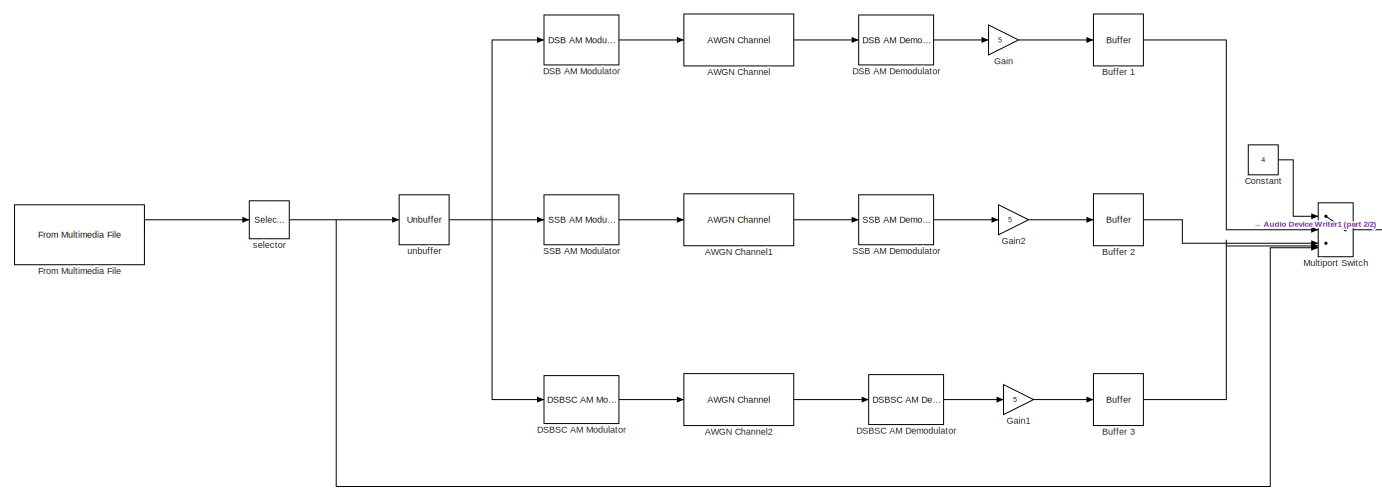
[diagram: root canvas - part 1/2, most of the canvas]
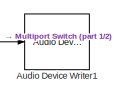
[diagram: root canvas - part 2/2, middle right region]
MODEL slx_f9d24304117a
KIND model
CONFIG AbsTol = auto
CONFIG EnableMultiTasking = off
CONFIG FixedStep = auto
CONFIG MaxStep = auto
CONFIG MinStep = auto
CONFIG RelTol = 1e-3
CONFIG SampleTimeConstraint = Unconstrained
CONFIG SolverName = VariableStepAuto
CONFIG StartTime = 0.0
CONFIG StopTime = 8
BLOCK [Reference] AWGN Channel  REF=commchan3/AWGN
Channel
  SourceBlock = commchan3/AWGN\nChannel
  SourceType = AWGN Channel
BLOCK [Reference] AWGN Channel1  REF=commchan3/AWGN
Channel
  SourceBlock = commchan3/AWGN\nChannel
  SourceType = AWGN Channel
BLOCK [Reference] AWGN Channel2  REF=commchan3/AWGN
Channel
  SourceBlock = commchan3/AWGN\nChannel
  SourceType = AWGN Channel
BLOCK [Reference] Audio Device Writer1  REF=dspsnks4/Audio Device
Writer
  SourceBlock = dspsnks4/Audio Device\nWriter
  SourceType = Audio Device Writer
BLOCK [Buffer] Buffer 1
  N = 1024
  OutputFrames = off
BLOCK [Buffer] Buffer 2
  N = 1024
  OutputFrames = off
BLOCK [Buffer] Buffer 3
  N = 1024
  OutputFrames = off
BLOCK [Constant] Constant
  Value = 4
BLOCK [Reference] DSB AM Demodulator   REF=commanapbnd3/DSB AM
Demodulator
Passband
  SourceBlock = commanapbnd3/DSB AM\nDemodulator\nPassband
  SourceType = DSB AM Demodulator Passband
BLOCK [Reference] DSB AM Modulator   REF=commanapbnd3/DSB AM
Modulator
Passband
  SourceBlock = commanapbnd3/DSB AM\nModulator\nPassband
  SourceType = DSB AM Modulator Passband
BLOCK [Reference] DSBSC AM Demodulator  REF=commanapbnd3/DSBSC AM
Demodulator
Passband
  SourceBlock = commanapbnd3/DSBSC AM\nDemodulator\nPassband
  SourceType = DSBSC AM Demodulator Passband
BLOCK [Reference] DSBSC AM Modulator   REF=commanapbnd3/DSBSC AM
Modulator
Passband
  SourceBlock = commanapbnd3/DSBSC AM\nModulator\nPassband
  SourceType = DSBSC AM Modulator Passband
BLOCK [Reference] From Multimedia File  REF=dspvision/From Multimedia File
  LibrarySourceBlock = dspsrcs4/From Multimedia File
  SourceBlock = dspvision/From Multimedia File
  SourceType = From Multimedia File
BLOCK [Gain] Gain
  Gain = 5
BLOCK [Gain] Gain1
  Gain = 5
BLOCK [Gain] Gain2
  Gain = 5
BLOCK [MultiPortSwitch] Multiport Switch
  DiagnosticForDefault = None
  InputSameDT = off
  Inputs = 4
  SaturateOnIntegerOverflow = off
BLOCK [Reference] SSB AM Demodulator   REF=commanapbnd3/SSB AM
Demodulator
Passband
  SourceBlock = commanapbnd3/SSB AM\nDemodulator\nPassband
  SourceType = SSB AM Demodulator Passband
BLOCK [Reference] SSB AM Modulator   REF=commanapbnd3/SSB AM
Modulator
Passband
  SourceBlock = commanapbnd3/SSB AM\nModulator\nPassband
  SourceType = SSB AM Modulator Passband
BLOCK [Selector] selector
  IndexOptions = Index vector (dialog),Index vector (dialog)
  Indices = [1:1024],1
  InputPortWidth = 3
  NumberOfDimensions = 2
  OutputSizes = 1,1
BLOCK [Unbuffer] unbuffer
LINE AWGN Channel1:1 -> SSB AM Demodulator :1
LINE AWGN Channel2:1 -> DSBSC AM Demodulator:1
LINE AWGN Channel:1 -> DSB AM Demodulator :1
LINE Buffer 1:1 -> Multiport Switch:2
LINE Buffer 2:1 -> Multiport Switch:3
LINE Buffer 3:1 -> Multiport Switch:4
LINE Constant:1 -> Multiport Switch:1
LINE DSB AM Demodulator :1 -> Gain:1
LINE DSB AM Modulator :1 -> AWGN Channel:1
LINE DSBSC AM Demodulator:1 -> Gain1:1
LINE DSBSC AM Modulator :1 -> AWGN Channel2:1
LINE From Multimedia File:1 -> selector:1
LINE Gain1:1 -> Buffer 3:1
LINE Gain2:1 -> Buffer 2:1
LINE Gain:1 -> Buffer 1:1
LINE Multiport Switch:1 -> Audio Device Writer1:1
LINE SSB AM Demodulator :1 -> Gain2:1
LINE SSB AM Modulator :1 -> AWGN Channel1:1
NET selector:1 -> Multiport Switch:5, unbuffer:1
NET unbuffer:1 -> DSB AM Modulator :1, DSBSC AM Modulator :1, SSB AM Modulator :1
note: NET lines group one-source signal fan-out (src -> all destinations, sorted); 1:1 wires keep LINE
